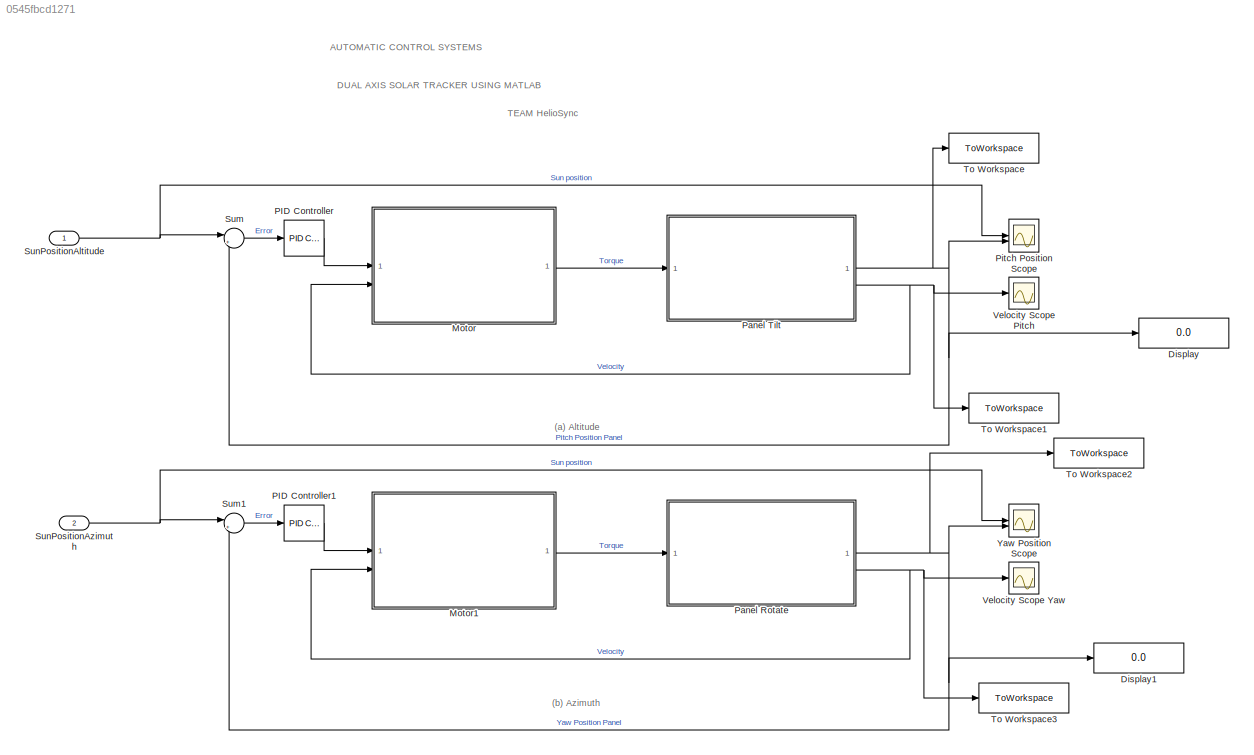
MODEL slx_0545fbcd1271
KIND model
CONFIG AbsTol = auto
CONFIG EnableMultiTasking = off
CONFIG FixedStep = auto
CONFIG MaxStep = auto
CONFIG MinStep = auto
CONFIG RelTol = 1e-3
CONFIG SampleTimeConstraint = Unconstrained
CONFIG SolverName = VariableStepAuto
CONFIG StartTime = 0.0
CONFIG StopTime = 15*3600
WORKSPACE source: mxarray member
WORKSPACE J = 8.6
WORKSPACE Kd = 5
WORKSPACE Kf = 0.07
WORKSPACE Kg = 2000
WORKSPACE Kt = 0.07
WORKSPACE L = 1e-05
WORKSPACE R = 10
BLOCK [Display] Display
  Decimation = 1
BLOCK [Display] Display1
  Decimation = 1
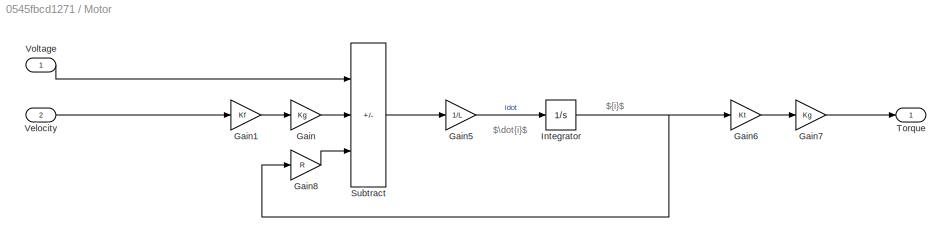
BLOCK [SubSystem] Motor
BLOCK [Gain] Motor/Gain
  Gain = Kg
BLOCK [Gain] Motor/Gain1
  Gain = Kf
BLOCK [Gain] Motor/Gain5
  Gain = 1/L
BLOCK [Gain] Motor/Gain6
  Gain = Kt
BLOCK [Gain] Motor/Gain7
  Gain = Kg
BLOCK [Gain] Motor/Gain8
  Gain = R
BLOCK [Integrator] Motor/Integrator
BLOCK [Sum] Motor/Subtract
  IconShape = rectangular
  Inputs = +--
BLOCK [Outport] Motor/Torque
BLOCK [Inport] Motor/Velocity
  Port = 2
BLOCK [Inport] Motor/Voltage
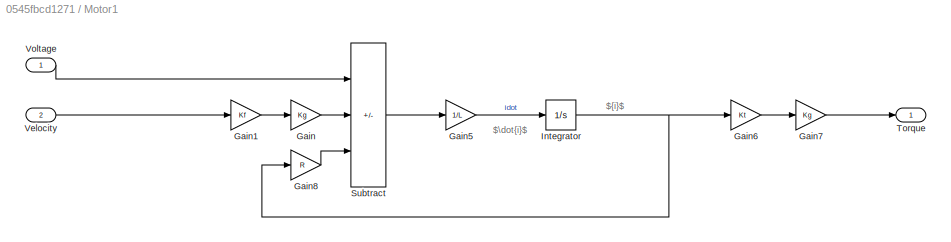
BLOCK [SubSystem] Motor1
BLOCK [Gain] Motor1/Gain
  Gain = Kg
BLOCK [Gain] Motor1/Gain1
  Gain = Kf
BLOCK [Gain] Motor1/Gain5
  Gain = 1/L
BLOCK [Gain] Motor1/Gain6
  Gain = Kt
BLOCK [Gain] Motor1/Gain7
  Gain = Kg
BLOCK [Gain] Motor1/Gain8
  Gain = R
BLOCK [Integrator] Motor1/Integrator
BLOCK [Sum] Motor1/Subtract
  IconShape = rectangular
  Inputs = +--
BLOCK [Outport] Motor1/Torque
BLOCK [Inport] Motor1/Velocity
  Port = 2
BLOCK [Inport] Motor1/Voltage
BLOCK [Reference] PID Controller  REF=slpidlib/PID Controller
  LibrarySourceBlock = simulink/Continuous/PID Controller
  SourceBlock = slpidlib/PID Controller
  SourceType = PID 1dof
BLOCK [Reference] PID Controller1  REF=slpidlib/PID Controller
  LibrarySourceBlock = simulink/Continuous/PID Controller
  SourceBlock = slpidlib/PID Controller
  SourceType = PID 1dof
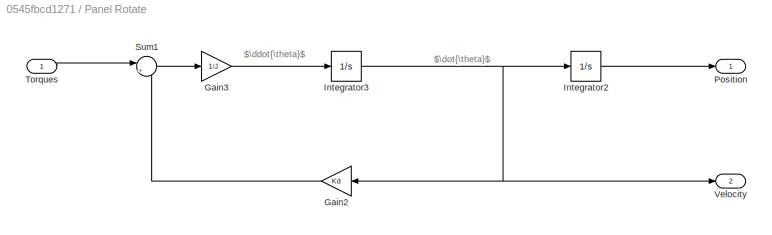
BLOCK [SubSystem] Panel Rotate
BLOCK [Gain] Panel Rotate/Gain2
  Gain = Kd
BLOCK [Gain] Panel Rotate/Gain3
  Gain = 1/J
BLOCK [Integrator] Panel Rotate/Integrator2
BLOCK [Integrator] Panel Rotate/Integrator3
BLOCK [Outport] Panel Rotate/Position
BLOCK [Sum] Panel Rotate/Sum1
  Inputs = |+-
BLOCK [Inport] Panel Rotate/Torques
BLOCK [Outport] Panel Rotate/Velocity
  Port = 2
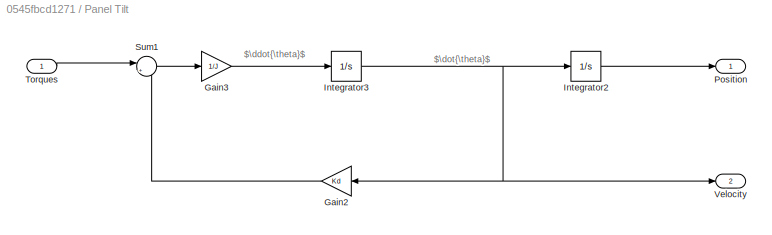
BLOCK [SubSystem] Panel Tilt
BLOCK [Gain] Panel Tilt/Gain2
  Gain = Kd
BLOCK [Gain] Panel Tilt/Gain3
  Gain = 1/J
BLOCK [Integrator] Panel Tilt/Integrator2
BLOCK [Integrator] Panel Tilt/Integrator3
BLOCK [Outport] Panel Tilt/Position
BLOCK [Sum] Panel Tilt/Sum1
  Inputs = |+-
BLOCK [Inport] Panel Tilt/Torques
BLOCK [Outport] Panel Tilt/Velocity
  Port = 2
BLOCK [Scope] Pitch Position Scope 
  Floating = off
  NumInputPorts = 2
  ScopeSpecificationString = Simulink.scopes.TimeScopeBlockCfg('CurrentConfiguration', extmgr.ConfigurationSet(extmgr.Configuration('Core','General UI',true),extmgr.Configuration('Core','Source UI',true),extmgr.Configuration('Sources','WiredSimulink',true,'DataLoggingVariableName','ScopeData2'),extmgr.Configuration('Visuals','Time Domain',true,'SerializedDisplays',{struct('MinYLimReal','-0.15508','MaxYLimReal','1.39573','YLab...<+1510ch>
BLOCK [Sum] Sum
  Inputs = |+-
BLOCK [Sum] Sum1
  Inputs = |+-
BLOCK [Inport] SunPositionAltitude
BLOCK [Inport] SunPositionAzimuth
  Port = 2
BLOCK [ToWorkspace] To Workspace
  FixptAsFi = on
  MaxDataPoints = inf
  SampleTime = -1
  VariableName = x1
BLOCK [ToWorkspace] To Workspace1
  FixptAsFi = on
  MaxDataPoints = inf
  SampleTime = -1
  SaveFormat = Timeseries
  VariableName = x2
BLOCK [ToWorkspace] To Workspace2
  FixptAsFi = on
  MaxDataPoints = inf
  SampleTime = -1
  SaveFormat = Timeseries
  VariableName = y1
BLOCK [ToWorkspace] To Workspace3
  FixptAsFi = on
  MaxDataPoints = inf
  SampleTime = -1
  SaveFormat = Timeseries
  VariableName = y2
BLOCK [Scope] Velocity Scope Pitch
  Floating = off
  NumInputPorts = 1
  ScopeSpecificationString = Simulink.scopes.TimeScopeBlockCfg('CurrentConfiguration', extmgr.ConfigurationSet(extmgr.Configuration('Core','General UI',true),extmgr.Configuration('Core','Source UI',true),extmgr.Configuration('Sources','WiredSimulink',true,'DataLoggingVariableName','ScopeData3'),extmgr.Configuration('Visuals','Time Domain',true,'SerializedDisplays',{struct('MinYLimReal','-0.00476','MaxYLimReal','0.02875','YLab...<+1394ch>
BLOCK [Scope] Velocity Scope Yaw
  Floating = off
  NumInputPorts = 1
  ScopeSpecificationString = Simulink.scopes.TimeScopeBlockCfg('CurrentConfiguration', extmgr.ConfigurationSet(extmgr.Configuration('Core','General UI',true),extmgr.Configuration('Core','Source UI',true),extmgr.Configuration('Sources','WiredSimulink',true,'DataLoggingVariableName','ScopeData2'),extmgr.Configuration('Visuals','Time Domain',true,'SerializedDisplays',{struct('MinYLimReal','-0.32528','MaxYLimReal','1.94208','YLab...<+1394ch>
BLOCK [Scope] Yaw Position Scope 
  Floating = off
  NumInputPorts = 2
  ScopeSpecificationString = Simulink.scopes.TimeScopeBlockCfg('CurrentConfiguration', extmgr.ConfigurationSet(extmgr.Configuration('Core','General UI',true),extmgr.Configuration('Core','Source UI',true),extmgr.Configuration('Sources','WiredSimulink',true,'DataLoggingVariableName','ScopeData1'),extmgr.Configuration('Visuals','Time Domain',true,'SerializedDisplays',{struct('MinYLimReal','-0.65991','MaxYLimReal','5.93922','YLab...<+1508ch>
ANNOTATION (root): (a) Altitude
ANNOTATION (root): (b) Azimuth
ANNOTATION (root): AUTOMATIC CONTROL SYSTEMS
ANNOTATION (root): TEAM HelioSync
ANNOTATION (root): DUAL AXIS SOLAR TRACKER USING MATLAB
ANNOTATION Motor: $\dot{i}$
ANNOTATION Motor: ${i}$
ANNOTATION Motor1: $\dot{i}$
ANNOTATION Motor1: ${i}$
ANNOTATION Panel Rotate: $\ddot{\theta}$
ANNOTATION Panel Rotate: $\dot{\theta}$
ANNOTATION Panel Tilt: $\ddot{\theta}$
ANNOTATION Panel Tilt: $\dot{\theta}$
LINE Motor/Gain1:1 -> Motor/Gain:1
LINE Motor/Gain5:1 -> Motor/Integrator:1
LINE Motor/Gain6:1 -> Motor/Gain7:1
LINE Motor/Gain7:1 -> Motor/Torque:1
LINE Motor/Gain8:1 -> Motor/Subtract:3
LINE Motor/Gain:1 -> Motor/Subtract:2
NET Motor/Integrator:1 -> Motor/Gain6:1, Motor/Gain8:1
LINE Motor/Subtract:1 -> Motor/Gain5:1
LINE Motor/Velocity:1 -> Motor/Gain1:1
LINE Motor/Voltage:1 -> Motor/Subtract:1
LINE Motor1/Gain1:1 -> Motor1/Gain:1
LINE Motor1/Gain5:1 -> Motor1/Integrator:1
LINE Motor1/Gain6:1 -> Motor1/Gain7:1
LINE Motor1/Gain7:1 -> Motor1/Torque:1
LINE Motor1/Gain8:1 -> Motor1/Subtract:3
LINE Motor1/Gain:1 -> Motor1/Subtract:2
NET Motor1/Integrator:1 -> Motor1/Gain6:1, Motor1/Gain8:1
LINE Motor1/Subtract:1 -> Motor1/Gain5:1
LINE Motor1/Velocity:1 -> Motor1/Gain1:1
LINE Motor1/Voltage:1 -> Motor1/Subtract:1
LINE Motor1:1 -> Panel Rotate:1
LINE Motor:1 -> Panel Tilt:1
LINE PID Controller1:1 -> Motor1:1
LINE PID Controller:1 -> Motor:1
LINE Panel Rotate/Gain2:1 -> Panel Rotate/Sum1:2
LINE Panel Rotate/Gain3:1 -> Panel Rotate/Integrator3:1
LINE Panel Rotate/Integrator2:1 -> Panel Rotate/Position:1
NET Panel Rotate/Integrator3:1 -> Panel Rotate/Gain2:1, Panel Rotate/Integrator2:1, Panel Rotate/Velocity:1
LINE Panel Rotate/Sum1:1 -> Panel Rotate/Gain3:1
LINE Panel Rotate/Torques:1 -> Panel Rotate/Sum1:1
NET Panel Rotate:1 -> Display1:1, Sum1:2, To Workspace2:1, Yaw Position Scope :2
NET Panel Rotate:2 -> Motor1:2, To Workspace3:1, Velocity Scope Yaw:1
LINE Panel Tilt/Gain2:1 -> Panel Tilt/Sum1:2
LINE Panel Tilt/Gain3:1 -> Panel Tilt/Integrator3:1
LINE Panel Tilt/Integrator2:1 -> Panel Tilt/Position:1
NET Panel Tilt/Integrator3:1 -> Panel Tilt/Gain2:1, Panel Tilt/Integrator2:1, Panel Tilt/Velocity:1
LINE Panel Tilt/Sum1:1 -> Panel Tilt/Gain3:1
LINE Panel Tilt/Torques:1 -> Panel Tilt/Sum1:1
NET Panel Tilt:1 -> Display:1, Pitch Position Scope :2, Sum:2, To Workspace:1
NET Panel Tilt:2 -> Motor:2, To Workspace1:1, Velocity Scope Pitch:1
LINE Sum1:1 -> PID Controller1:1
LINE Sum:1 -> PID Controller:1
NET SunPositionAltitude:1 -> Pitch Position Scope :1, Sum:1
NET SunPositionAzimuth:1 -> Sum1:1, Yaw Position Scope :1
note: NET lines group one-source signal fan-out (src -> all destinations, sorted); 1:1 wires keep LINE
